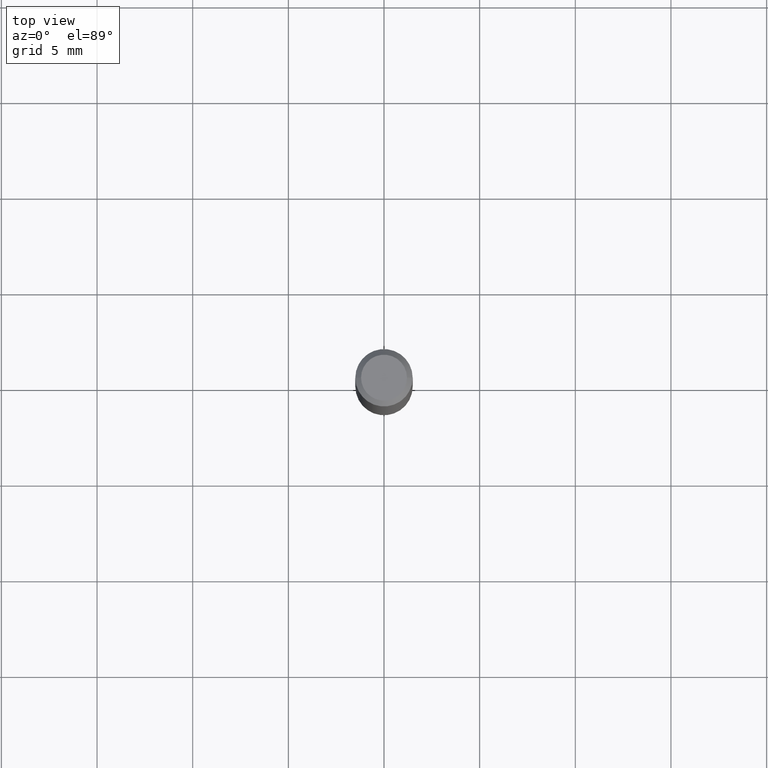
[diagram: clean part render]
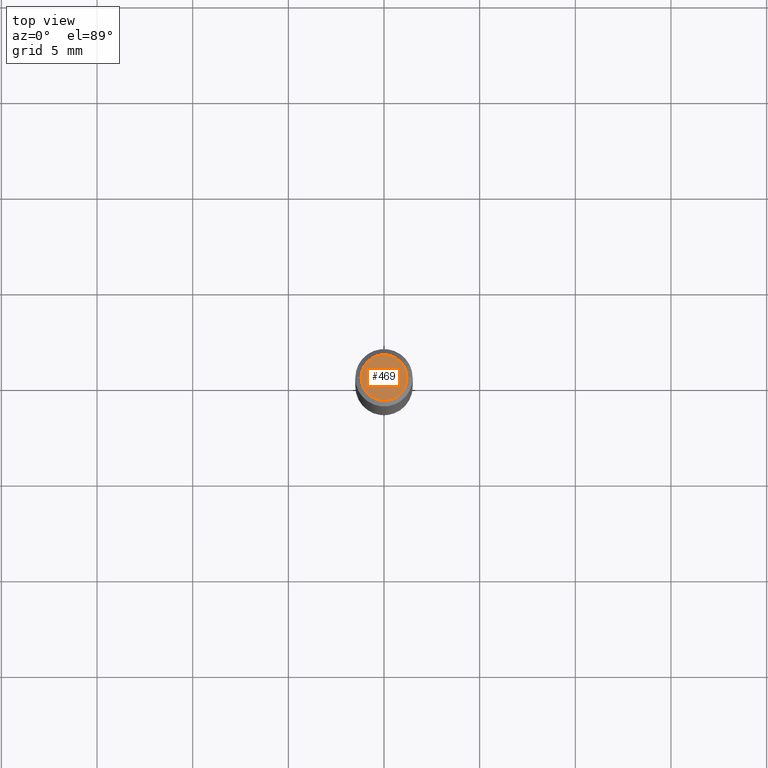
[diagram: same view with one face highlighted and labeled with its STEP entity id]
A machine part, top view. The second image highlights one B-rep face of the part: STEP entity #469.
In plain terms, the highlighted planar face has unit normal (0, -0, -1).
Its self-contained STEP definition (entity closure, byte-faithful):
#31 = CARTESIAN_POINT ( 'NONE',  ( 4.132873053354867254E-48, -5.900647395337818946E-34, -1.690012582823346072E-19 ) ) ;
#34 = DIRECTION ( 'NONE',  ( -1.000000000000000000, 6.982962677686265922E-15, -4.876176775795935793E-29 ) ) ;
#90 = VERTEX_POINT ( 'NONE', #299 ) ;
#131 = AXIS2_PLACEMENT_3D ( 'NONE', #234, #136, #403 ) ;
#136 = DIRECTION ( 'NONE',  ( -2.445468806185136597E-29, 3.491481338843145583E-15, 1.000000000000000000 ) ) ;
#143 = CIRCLE ( 'NONE', #176, 0.04724000000000000421 ) ;
#174 = PLANE ( 'NONE',  #213 ) ;
#176 = AXIS2_PLACEMENT_3D ( 'NONE', #314, #274, #394 ) ;
#183 = EDGE_CURVE ( 'NONE', #90, #194, #361, .T. ) ;
#194 = VERTEX_POINT ( 'NONE', #327 ) ;
#213 = AXIS2_PLACEMENT_3D ( 'NONE', #31, #362, #34 ) ;
#220 = EDGE_LOOP ( 'NONE', ( #264, #380 ) ) ;
#234 = CARTESIAN_POINT ( 'NONE',  ( 8.265746106709734507E-48, -1.180129479067563789E-33, -3.380025165646692144E-19 ) ) ;
#264 = ORIENTED_EDGE ( 'NONE', *, *, #318, .T. ) ;
#274 = DIRECTION ( 'NONE',  ( -2.445468806185136597E-29, 3.491481338843145583E-15, 1.000000000000000000 ) ) ;
#299 = CARTESIAN_POINT ( 'NONE',  ( 0.04724000000000000421, -3.852183633974369345E-16, -3.380025165621689721E-19 ) ) ;
#314 = CARTESIAN_POINT ( 'NONE',  ( 8.265746106709734507E-48, -1.180129479067563789E-33, -3.380025165646692144E-19 ) ) ;
#318 = EDGE_CURVE ( 'NONE', #194, #90, #143, .T. ) ;
#327 = CARTESIAN_POINT ( 'NONE',  ( -0.04724000000000000421, 3.504923541997677355E-16, -3.380025165670481712E-19 ) ) ;
#361 = CIRCLE ( 'NONE', #131, 0.04724000000000000421 ) ;
#362 = DIRECTION ( 'NONE',  ( 2.438088387897960049E-29, -3.491481338843145188E-15, -1.000000000000000000 ) ) ;
#368 = FACE_OUTER_BOUND ( 'NONE', #220, .T. ) ;
#380 = ORIENTED_EDGE ( 'NONE', *, *, #183, .T. ) ;
#394 = DIRECTION ( 'NONE',  ( 1.000000000000000000, -6.982962677686266711E-15, 4.876185090822587894E-29 ) ) ;
#403 = DIRECTION ( 'NONE',  ( 1.000000000000000000, -6.982962677686266711E-15, 4.876185090822587894E-29 ) ) ;
#469 = ADVANCED_FACE ( 'NONE', ( #368 ), #174, .F. ) ;